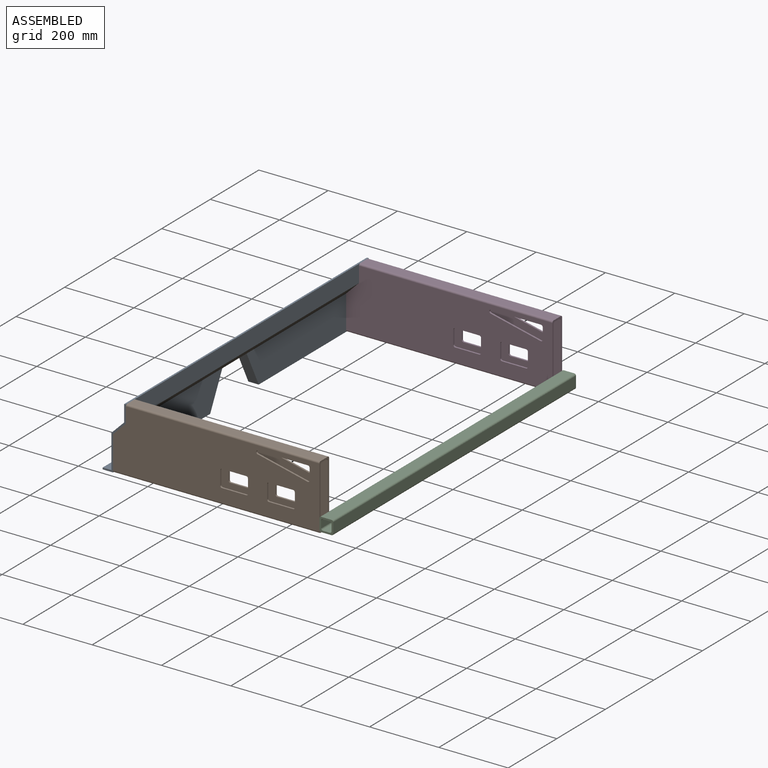
[diagram: assembled view]
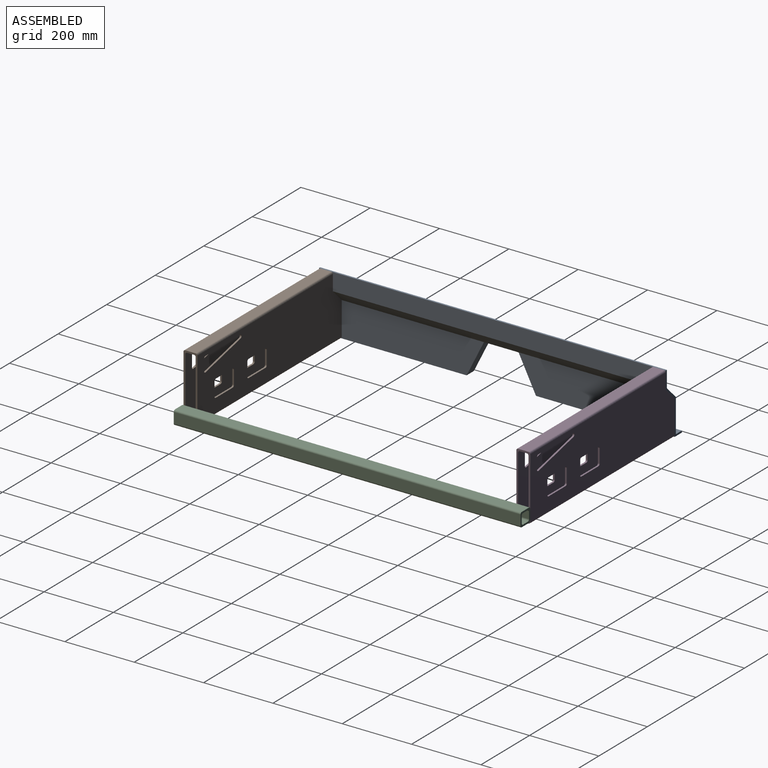
[diagram: assembled view, second angle]
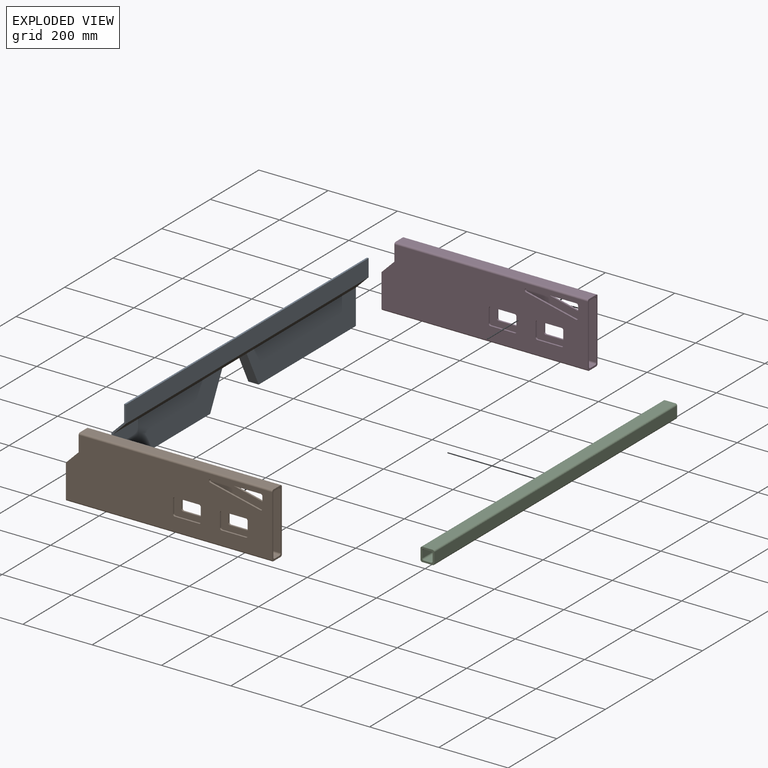
[diagram: exploded view]
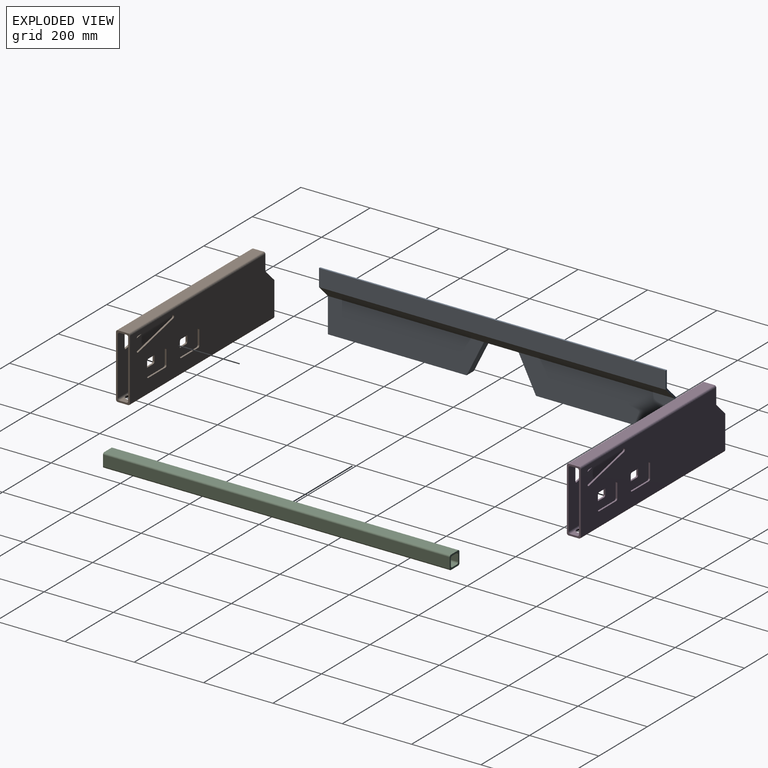
[diagram: exploded view, second angle]
ASSEMBLY  parts=4 mates=9
PART A: 22 faces, bbox 67x1000x187 mm
  f0: plane 450x100mm, normal (1,0,0), area 42500mm2, adj f7,f13,f14,f20
  f1: plane 396.91x25mm, normal (0,0,1), area 9922.7mm2, adj f2,f6,f9,f16
  f2: plane 100x50mm, normal (0,-0.89,0.45), area 2799.9mm2, adj f1,f3,f6,f15,f16
  f3: plane 106.18x27.93mm, normal (0,0,1), area 2965.5mm2, adj f2,f4,f6,f15
  f4: plane 100x50mm, normal (0,0.89,0.45), area 2799.9mm2, adj f3,f5,f6,f15,f17
  f5: plane 396.91x25mm, normal (0,0,1), area 9922.7mm2, adj f4,f6,f7,f17
  f6: plane 1000x105mm, normal (-1,0,0), area 5618mm2, adj f1,f2,f3,f4,f5,f7,f9,f10
  f7: plane 186.97x66.97mm, normal (0,1,0), area 1136.4mm2, adj f0,f5,f6,f14,f15,f17,f18,f19
  f8: plane 450x100mm, normal (1,0,0), area 42500mm2, adj f9,f10,f11,f20
  f9: plane 186.97x66.97mm, normal (0,-1,0), area 1136.4mm2, adj f1,f6,f8,f10,f15,f16,f18,f19
  f10: plane 400x30mm, normal (0,0,-1), area 12000mm2, adj f6,f8,f9,f11
  f11: plane 100x50mm, normal (0,0.89,-0.45), area 3354.1mm2, adj f6,f8,f10,f12
  f12: plane 100x30mm, normal (0,0,-1), area 3000mm2, adj f6,f11,f13,f20
  f13: plane 100x50mm, normal (0,-0.89,-0.45), area 3354.1mm2, adj f0,f6,f12,f14
  f14: plane 400x30mm, normal (0,0,-1), area 12000mm2, adj f0,f6,f7,f13
  f15: plane 1000x36.97mm, normal (-0.71,0,0.71), area 51840.7mm2, adj f2,f3,f4,f7,f9,f16,f17,f21
  f16: plane 445.45x97.07mm, normal (-1,0,0), area 40884.2mm2, adj f1,f2,f9,f15
  f17: plane 445.45x97.07mm, normal (-1,0,0), area 40884.2mm2, adj f4,f5,f7,f15
  f18: plane 1000x5mm, normal (0,0,1), area 5000mm2, adj f7,f9,f19,f21
  f19: plane 1000x50mm, normal (1,0,0), area 50000mm2, adj f7,f9,f18,f20
  f20: plane 1000x36.97mm, normal (0.71,0,-0.71), area 52286.6mm2, adj f0,f7,f8,f9,f12,f19
  f21: plane 1000x47.93mm, normal (-1,0,0), area 47928.9mm2, adj f7,f9,f15,f18
PART B: 72 faces, bbox 40x595x187 mm
  f0: plane 595x30mm, normal (0,0,-1), area 16243.3mm2, adj f4,f5,f15,f19,f67,f68,f69,f70
  f1: plane 355.81x20mm, normal (0,0,1), area 6976.3mm2, adj f8,f10,f70,f71
  f2: plane 162.5x20mm, normal (0,0,1), area 3180.1mm2, adj f8,f10,f19,f68
  f3: plane 595x177mm, normal (-1,0,0), area 90916.7mm2, adj f4,f14,f15,f19,f21,f22,f45,f46
  f4: cylinder r=5mm len=595mm, axis (0,-1,0), area 4673.1mm2, adj f0,f3,f15,f19
  f5: cylinder r=5mm len=595mm, axis (0,-1,0), area 4673.1mm2, adj f0,f6,f15,f19
  f6: plane 595x177mm, normal (1,0,0), area 90916.7mm2, adj f5,f12,f15,f19,f20,f22,f23,f24
  f7: plane 595x167mm, normal (1,0,0), area 85151.5mm2, adj f8,f15,f16,f19,f21,f22,f45,f46
  f8: cylinder r=5mm len=595mm, axis (0,-1,0), area 4554.9mm2, adj f1,f2,f7,f9,f15,f19,f67,f68
  f9: plane 21.69x20mm, normal (0,0,1), area 364mm2, adj f8,f10,f15,f71
  f10: cylinder r=5mm len=595mm, axis (0,-1,0), area 4554.9mm2, adj f1,f2,f9,f11,f15,f19,f68,f69
  f11: plane 595x167mm, normal (-1,0,0), area 85151.5mm2, adj f10,f15,f18,f19,f20,f22,f23,f24
  f12: cylinder r=5mm len=558.03mm, axis (0,-1,0), area 4382.7mm2, adj f6,f13,f15,f22
  f13: plane 558.03x30mm, normal (0,0,1), area 16740.8mm2, adj f12,f14,f15,f22
  f14: cylinder r=5mm len=558.03mm, axis (0,-1,0), area 4382.7mm2, adj f3,f13,f15,f22
  f15: plane 187x40mm, normal (0,-1,0), area 2170mm2, adj f0,f3,f4,f5,f6,f7,f8,f9
  f16: cylinder r=5mm len=558.03mm, axis (0,-1,0), area 4382.7mm2, adj f7,f15,f17,f22
  f17: plane 558.03x20mm, normal (0,0,-1), area 11160.6mm2, adj f15,f16,f18,f22
  f18: cylinder r=5mm len=558.03mm, axis (0,-1,0), area 4382.7mm2, adj f11,f15,f17,f22
  f19: plane 100.03x40mm, normal (0,1,0), area 1150.3mm2, adj f0,f2,f3,f4,f5,f6,f7,f8
  f20: plane 36.97x36.97mm, normal (0,0.71,0.71), area 261.4mm2, adj f6,f11,f19,f22
  f21: plane 36.97x36.97mm, normal (0,0.71,0.71), area 261.4mm2, adj f3,f7,f19,f22
  f22: plane 50x40mm, normal (0,1,0), area 650mm2, adj f3,f6,f7,f11,f12,f13,f14,f16
  f23: cylinder r=5mm len=5mm, axis (-1,0,0), area 39.3mm2, adj f6,f11,f24,f30
  f24: plane 40x5mm, normal (0,1,0), area 200mm2, adj f6,f11,f23,f25
  f25: cylinder r=5mm len=5mm, axis (-1,0,0), area 39.3mm2, adj f6,f11,f24,f26
  f26: plane 70x5mm, normal (0,0,1), area 350mm2, adj f6,f11,f25,f27
  f27: cylinder r=5mm len=5mm, axis (-1,0,0), area 39.3mm2, adj f6,f11,f26,f28
  f28: plane 40x5mm, normal (0,-1,0), area 200mm2, adj f6,f11,f27,f29
  f29: cylinder r=5mm len=5mm, axis (-1,0,0), area 39.3mm2, adj f6,f11,f28,f30
  f30: plane 70x5mm, normal (0,0,-1), area 350mm2, adj f6,f11,f23,f29
  f31: cylinder r=5mm len=5mm, axis (-1,0,0), area 39.3mm2, adj f6,f11,f32,f38
  f32: plane 40x5mm, normal (0,1,0), area 200mm2, adj f6,f11,f31,f33
  f33: cylinder r=5mm len=5mm, axis (-1,0,0), area 39.3mm2, adj f6,f11,f32,f34
  f34: plane 70x5mm, normal (0,0,1), area 350mm2, adj f6,f11,f33,f35
  f35: cylinder r=5mm len=5mm, axis (-1,0,0), area 39.3mm2, adj f6,f11,f34,f36
  f36: plane 40x5mm, normal (0,-1,0), area 200mm2, adj f6,f11,f35,f37
  f37: cylinder r=5mm len=5mm, axis (-1,0,0), area 39.3mm2, adj f6,f11,f36,f38
  f38: plane 70x5mm, normal (0,0,-1), area 350mm2, adj f6,f11,f31,f37
  f39: plane 144.14x5mm, normal (0,0,-1), area 720.7mm2, adj f6,f11,f40,f44
  f40: cylinder r=5mm len=5mm, axis (-1,0,0), area 39.3mm2, adj f6,f11,f39,f41
  f41: plane 33.15x5mm, normal (0,1,0), area 165.8mm2, adj f6,f11,f40,f42
  f42: cylinder r=5mm len=6.12mm, axis (-1,0,0), area 44.9mm2, adj f6,f11,f41,f43
  f43: plane 144.14x33.15mm, normal (0,-0.22,0.97), area 739.5mm2, adj f6,f11,f42,f44
  f44: cylinder r=5mm len=9.87mm, axis (-1,0,0), area 72.9mm2, adj f6,f11,f39,f43
  f45: plane 70x5mm, normal (0,0,-1), area 350mm2, adj f3,f7,f46,f52
  f46: cylinder r=5mm len=5mm, axis (-1,0,0), area 39.3mm2, adj f3,f7,f45,f47
  f47: plane 40x5mm, normal (0,-1,0), area 200mm2, adj f3,f7,f46,f48
  f48: cylinder r=5mm len=5mm, axis (-1,0,0), area 39.3mm2, adj f3,f7,f47,f49
  f49: plane 70x5mm, normal (0,0,1), area 350mm2, adj f3,f7,f48,f50
  f50: cylinder r=5mm len=5mm, axis (-1,0,0), area 39.3mm2, adj f3,f7,f49,f51
  f51: plane 40x5mm, normal (0,1,0), area 200mm2, adj f3,f7,f50,f52
  f52: cylinder r=5mm len=5mm, axis (-1,0,0), area 39.3mm2, adj f3,f7,f45,f51
  f53: plane 70x5mm, normal (0,0,-1), area 350mm2, adj f3,f7,f54,f60
  f54: cylinder r=5mm len=5mm, axis (-1,0,0), area 39.3mm2, adj f3,f7,f53,f55
  f55: plane 40x5mm, normal (0,-1,0), area 200mm2, adj f3,f7,f54,f56
  f56: cylinder r=5mm len=5mm, axis (-1,0,0), area 39.3mm2, adj f3,f7,f55,f57
  f57: plane 70x5mm, normal (0,0,1), area 350mm2, adj f3,f7,f56,f58
  f58: cylinder r=5mm len=5mm, axis (-1,0,0), area 39.3mm2, adj f3,f7,f57,f59
  f59: plane 40x5mm, normal (0,1,0), area 200mm2, adj f3,f7,f58,f60
  f60: cylinder r=5mm len=5mm, axis (-1,0,0), area 39.3mm2, adj f3,f7,f53,f59
  f61: cylinder r=5mm len=9.87mm, axis (-1,0,0), area 72.9mm2, adj f3,f7,f62,f66
  f62: plane 144.14x33.15mm, normal (0,-0.22,0.97), area 739.5mm2, adj f3,f7,f61,f63
  f63: cylinder r=5mm len=6.12mm, axis (-1,0,0), area 44.9mm2, adj f3,f7,f62,f64
  f64: plane 33.15x5mm, normal (0,1,0), area 165.8mm2, adj f3,f7,f63,f65
  f65: cylinder r=5mm len=5mm, axis (-1,0,0), area 39.3mm2, adj f3,f7,f64,f66
  f66: plane 144.14x5mm, normal (0,0,-1), area 720.7mm2, adj f3,f7,f61,f65
  f67: plane 25x5.67mm, normal (1,0,0), area 141.7mm2, adj f0,f8,f68,f70
  f68: cylinder r=12.5mm len=25mm, axis (0,0,-1), area 201.9mm2, adj f0,f2,f8,f10,f67,f69
  f69: plane 25x5.67mm, normal (-1,0,0), area 141.7mm2, adj f0,f10,f68,f70
  f70: cylinder r=12.5mm len=25mm, axis (0,0,-1), area 201.9mm2, adj f0,f1,f8,f10,f67,f69
  f71: cylinder r=12.5mm len=25mm, axis (0,0,-1), area 403.9mm2, adj f0,f1,f8,f9,f10
PART C: 18 faces, bbox 40x1000x40 mm
  f0: plane 1000x30mm, normal (1,0,0), area 30000mm2, adj f1,f7,f8,f9
  f1: cylinder r=5mm len=1000mm, axis (0,-1,0), area 7854mm2, adj f0,f2,f8,f9
  f2: plane 1000x30mm, normal (0,0,1), area 30000mm2, adj f1,f3,f8,f9
  f3: cylinder r=5mm len=1000mm, axis (0,-1,0), area 7854mm2, adj f2,f4,f8,f9
  f4: plane 1000x30mm, normal (-1,0,0), area 30000mm2, adj f3,f5,f8,f9
  f5: cylinder r=5mm len=1000mm, axis (0,-1,0), area 7854mm2, adj f4,f6,f8,f9
  f6: plane 1000x30mm, normal (0,0,-1), area 30000mm2, adj f5,f7,f8,f9
  f7: cylinder r=5mm len=1000mm, axis (0,-1,0), area 7854mm2, adj f0,f6,f8,f9
  f8: plane 40x40mm, normal (0,1,0), area 700mm2, adj f0,f1,f2,f3,f4,f5,f6,f7
  f9: plane 40x40mm, normal (0,-1,0), area 700mm2, adj f0,f1,f2,f3,f4,f5,f6,f7
  f10: cylinder r=5mm len=1000mm, axis (0,-1,0), area 7854mm2, adj f8,f9,f11,f16
  f11: plane 1000x20mm, normal (0,0,-1), area 20000mm2, adj f8,f9,f10,f12
  f12: cylinder r=5mm len=1000mm, axis (0,-1,0), area 7854mm2, adj f8,f9,f11,f13
  f13: plane 1000x20mm, normal (1,0,0), area 20000mm2, adj f8,f9,f12,f14
  f14: cylinder r=5mm len=1000mm, axis (0,-1,0), area 7854mm2, adj f8,f9,f13,f15
  f15: plane 1000x20mm, normal (0,0,1), area 20000mm2, adj f8,f9,f14,f17
  f16: plane 1000x20mm, normal (-1,0,0), area 20000mm2, adj f8,f9,f10,f17
  f17: cylinder r=5mm len=1000mm, axis (0,-1,0), area 7854mm2, adj f8,f9,f15,f16
PART D: same geometry as B
PLACE A t=(-221.11,-55.31,-13.97)mm fixed
PLACE B rot(axis=(0,0,1),90deg) t=(403.89,-535.31,36.03)mm
PLACE C t=(423.89,-555.31,11.03)mm
PLACE D rot(axis=(0,0,1),90deg) t=(403.89,424.69,36.03)mm
MATE planar C.f6 <-> B.f1  axis (0,0,-1) through (423.89,-55.31,-8.97)mm
MATE planar D.f0 <-> A.f14  axis (0,0,-1) through (106.19,424.69,-13.97)mm
MATE planar C.f9 <-> B.f3  axis (0,-1,0) through (423.89,-555.31,11.03)mm
MATE planar B.f19 <-> A.f8  axis (-1,0,0) through (-191.11,-535.31,29.9)mm
MATE planar C.f4 <-> B.f15  axis (-1,0,0) through (403.89,-55.31,11.03)mm
MATE planar A.f7 <-> D.f6  axis (0,1,0) through (-183.04,444.69,71.27)mm
MATE planar A.f0 <-> D.f19  axis (1,0,0) through (-191.11,444.69,36.03)mm
MATE planar B.f3 <-> A.f9  axis (0,-1,0) through (93.79,-555.31,77.59)mm
MATE planar B.f0 <-> A.f10  axis (0,0,-1) through (106.19,-535.31,-13.97)mm
